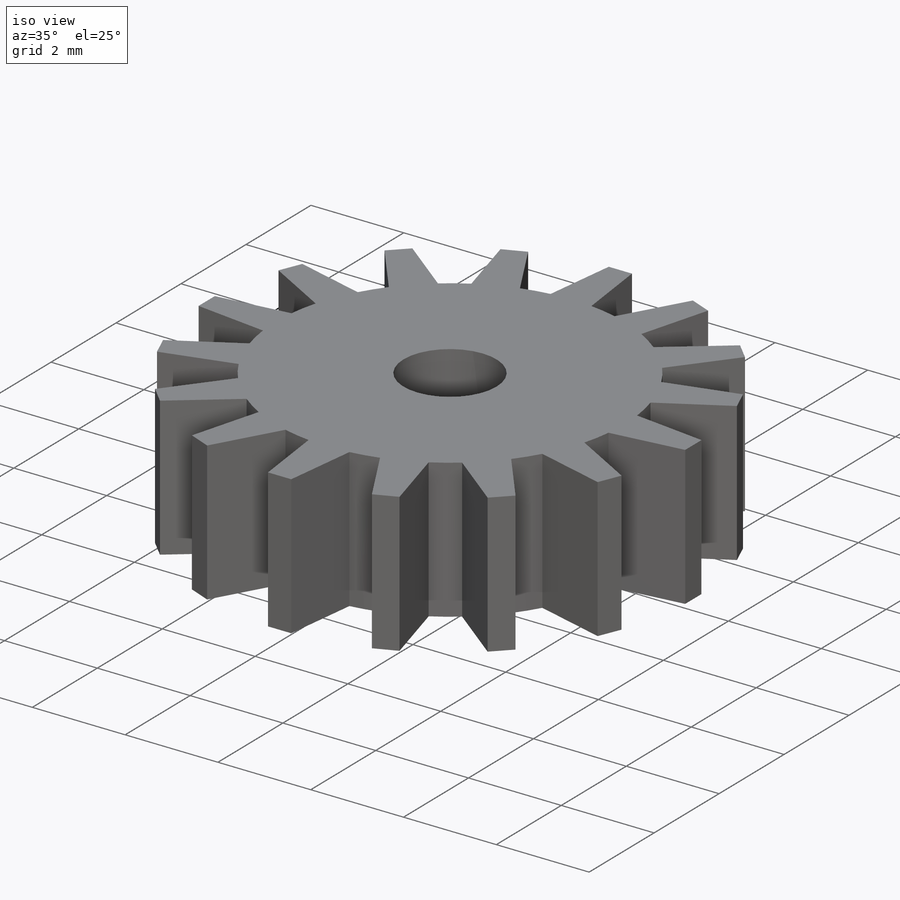
[diagram: iso view]
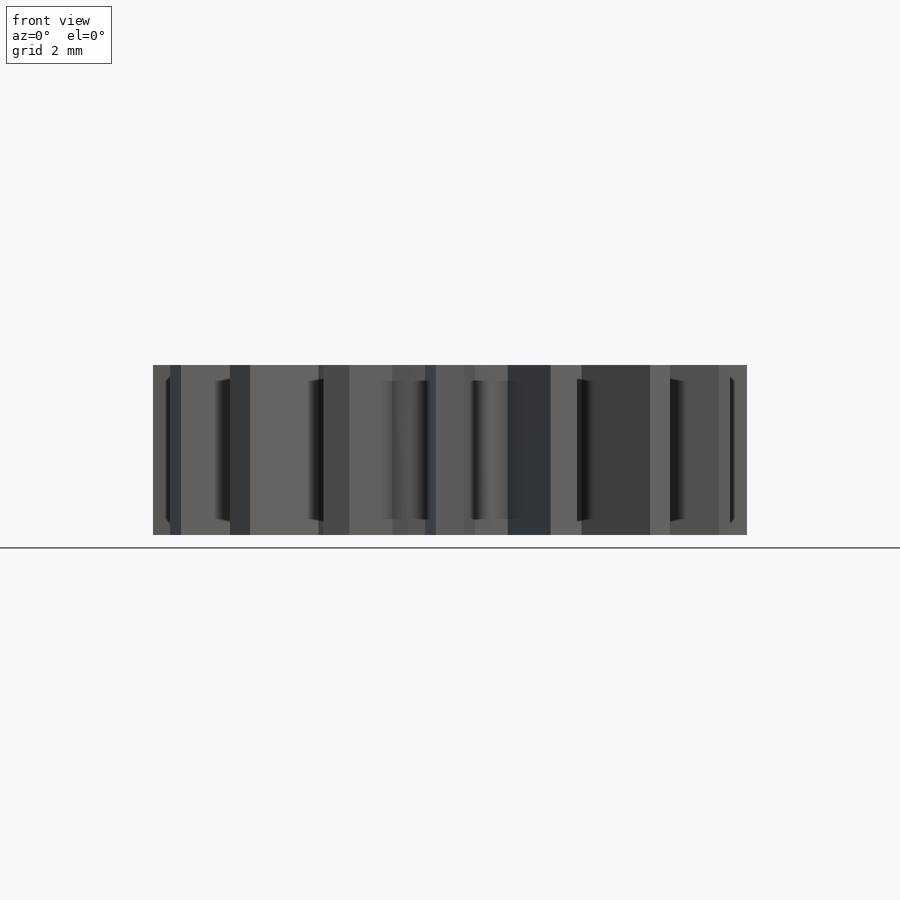
[diagram: front view]
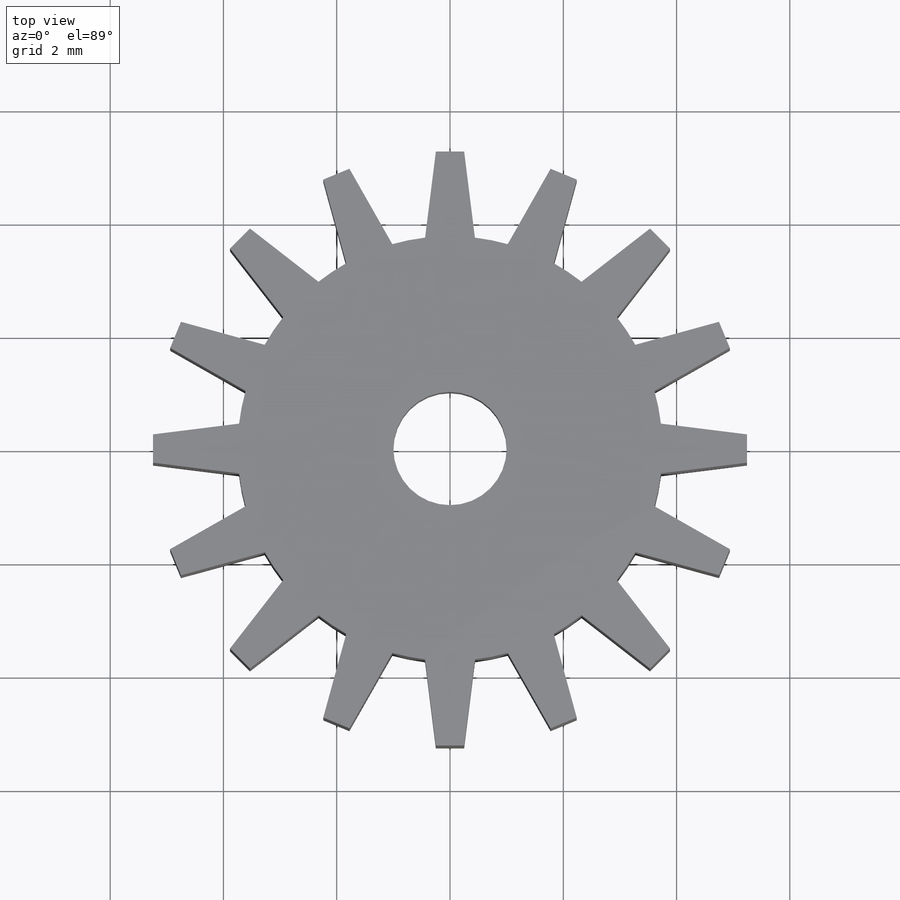
[diagram: top view]
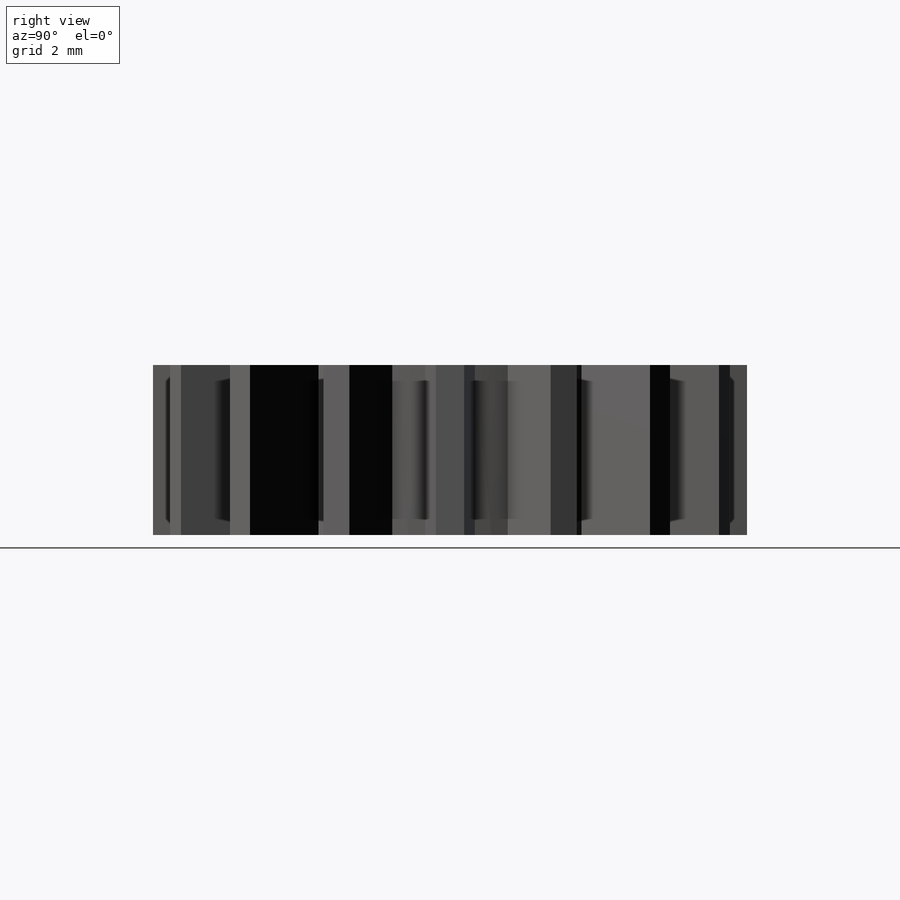
[diagram: right view]
SOLIDWORKS PART (.sldprt)
format: sldprt  version: not decoded by parser v0  size: 404,992 bytes
history: native  units: mm
features: sketch x4, plane x3, extrude x2, cut_extrude x2, material x1, pattern_circular x1 (+10 scaffold rows collapsed)
feature tree (23):
  scaffold x10  (default folders/planes/origin — collapsed)
  material  "uhlíková ocel 7850"
  plane  "Přední rovina"
  plane  "Horní rovina"
  plane  "Pravá rovina"
  sketch  "Skica1"  dims[D1=7.5mm]
  extrude  "Přidat vysunutím1"  Depth=3mm
  sketch  "Skica2"  dims[c1.D2=10.5mm c1.D1=~1.50673mm c2.D1=14.25deg c2.D3=0.5mm]
  extrude  "Přidat vysunutím2"  [1 undecoded]
  pattern_circular  "Kruhové pole1"  Count=16 Angle=360deg
  sketch  "Skica3"  dims[D1=2.0mm]
  cut_extrude  "Odebrat vysunutím1"  Depth=5mm
  sketch  "Skica4"  dims[D1=5.0mm]
  cut_extrude  "Odebrat vysunutím2"  Depth=1.5mm
decode coverage: 8 of 9 modeling features carry decoded parameters
note: ~ marks probable driven/reference dimensions
note: 1 parameter value undecoded
note: suppression state not decoded; provenance and decode notes live in map.json
